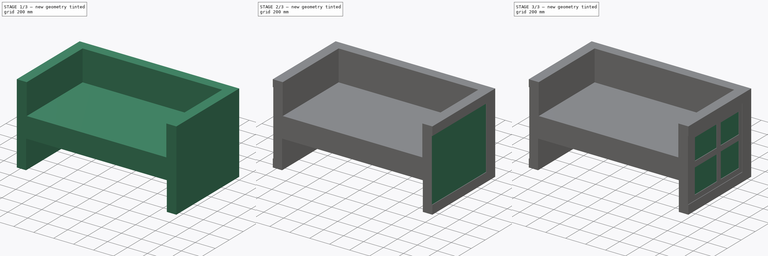
[diagram: build sequence overview — one tinted view per stage of 3, left to right]
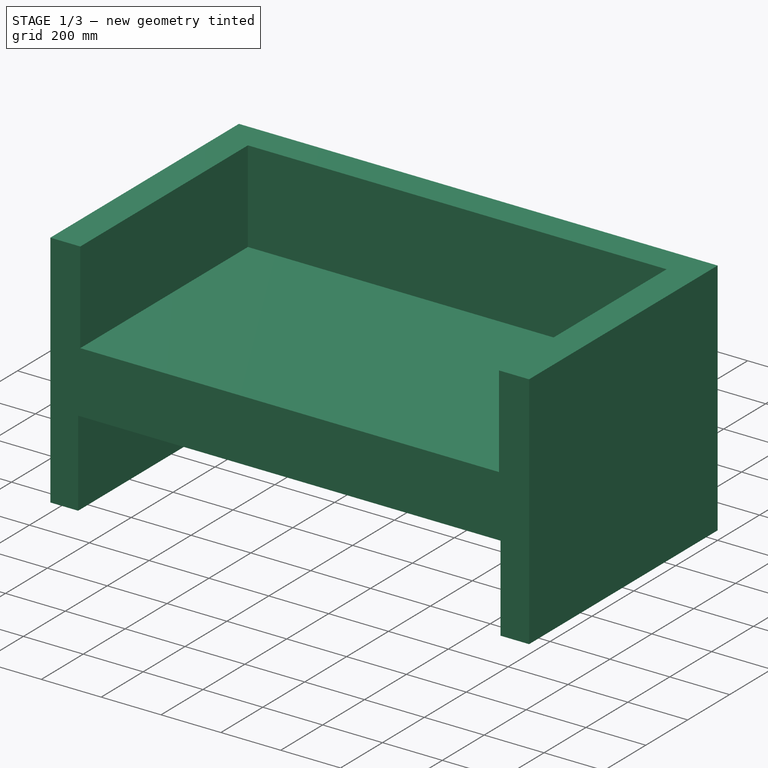
[diagram: stage 1 of 3 — iso view after this stage's code; geometry added in this stage tinted green]
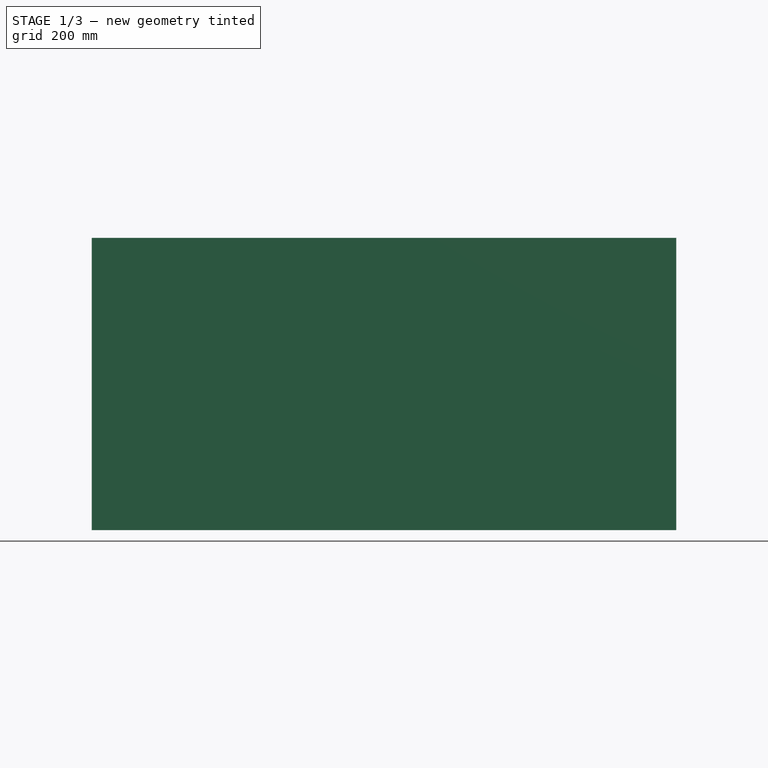
[diagram: stage 1 of 3 — front view after this stage's code; geometry added in this stage tinted green]
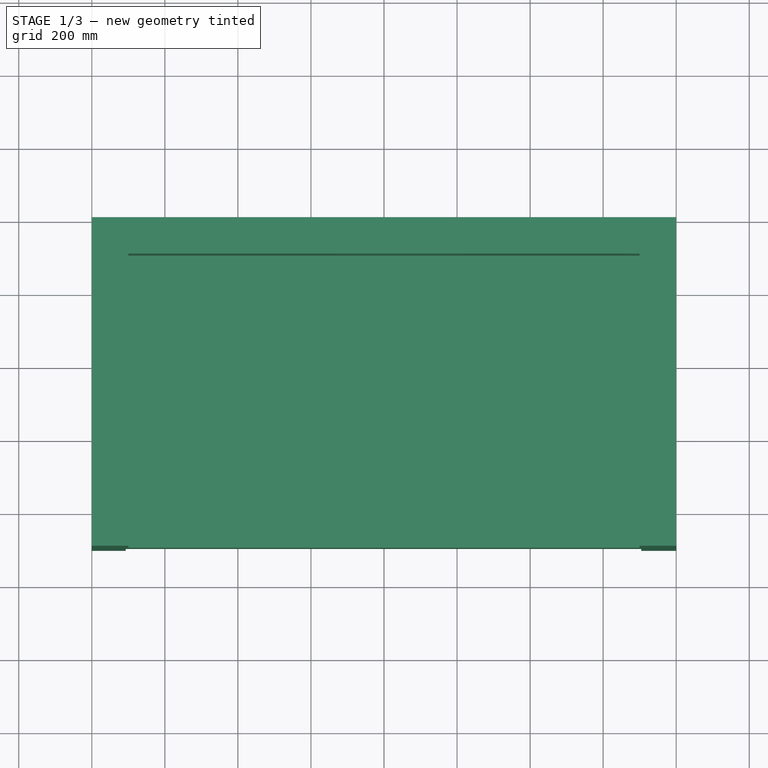
[diagram: stage 1 of 3 — top view after this stage's code; geometry added in this stage tinted green]
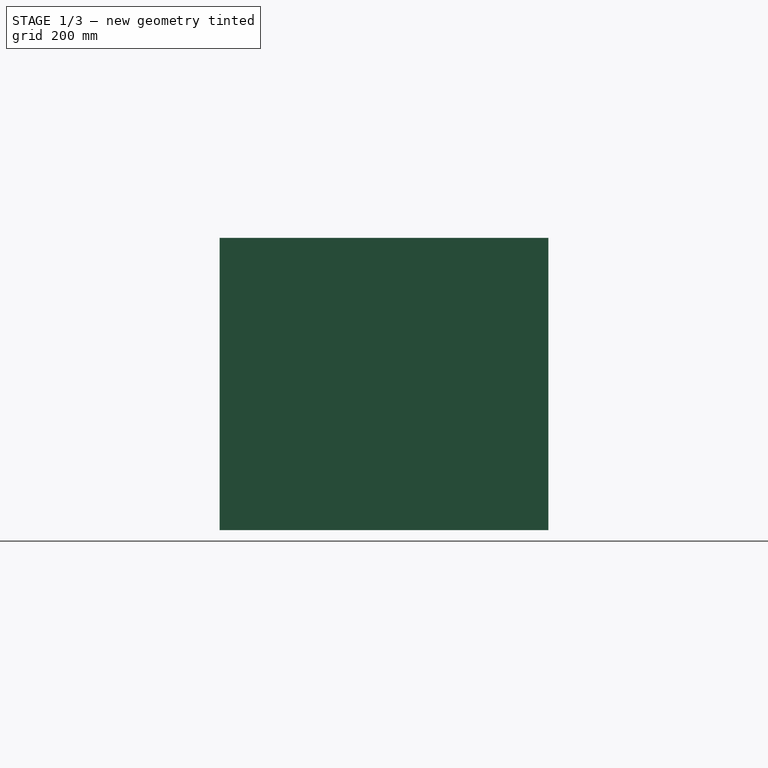
[diagram: stage 1 of 3 — right view after this stage's code; geometry added in this stage tinted green]
FCSTD DOCUMENT  (FreeCAD 1.0R39319 (Git))
Label: kitchen-island
License: All rights reserved
LicenseURL: https://en.wikipedia.org/wiki/All_rights_reserved
objects: Sketcher::SketchObject×6, PartDesign::Pocket×5, PartDesign::Pad×1, PartDesign::Body×1
note: 31 computed .brp shape members not serialized (recipe doc carries the construction recipe); baked Part::Feature solids carry a one-line shape summary decoded from their .brp

FEATURE [Sketcher::SketchObject] Sketch
  ArcFitTolerance = 1e-06
  AttachmentSupport = -> [XZ_Plane]
  FullyConstrained = true
  MakeInternals = false
  MapMode = 5
  Placement = pos=(0,0,0) rot=(1,0,0;1.5708rad)
  sketch-geometry (4):
    g0: LineSegment StartX=0 StartY=0 StartZ=0 EndX=1600 EndY=0 EndZ=0
    g1: LineSegment StartX=1600 StartY=0 StartZ=0 EndX=1600 EndY=800 EndZ=0
    g2: LineSegment StartX=1600 StartY=800 StartZ=0 EndX=0 EndY=800 EndZ=0
    g3: LineSegment StartX=0 StartY=800 StartZ=0 EndX=0 EndY=0 EndZ=0
  constraints (11):
    c: Coincident(g0,g1)
    c: Coincident(g1,g2)
    c: Coincident(g2,g3)
    c: Coincident(g3,g0)
    c: Horizontal(g0)
    c: Horizontal(g2)
    c: Vertical(g1)
    c: Vertical(g3)
    c: Distance(g1,g3) = 1600
    c: Distance(g0,g2) = 800
    c: Coincident(g0,g-1)
FEATURE [PartDesign::Pad] Pad
  Direction = (0,-1,2e-16)
  Length = 900
  Length2 = 10
  Placement = pos=(0,0,0) rot=(1,0,0;1.5708rad)
  Profile = -> Sketch
  ReferenceAxis = -> Sketch [N_Axis]
  Refine = true
  Suppressed = false
  Type = 0
FEATURE [Sketcher::SketchObject] Sketch001
  ArcFitTolerance = 1e-06
  AttachmentSupport = -> [Pad]
  FullyConstrained = false
  MakeInternals = false
  MapMode = 5
  Placement = pos=(0,-900,0) rot=(1,0,0;1.5708rad)
  sketch-geometry (8):
    g0: LineSegment StartX=100 StartY=850.789 StartZ=0 EndX=100 EndY=492.989 EndZ=0
    g1: LineSegment StartX=100 StartY=492.989 StartZ=0 EndX=1499.49 EndY=492.989 EndZ=0
    g2: LineSegment StartX=1499.49 StartY=492.989 StartZ=0 EndX=1499.49 EndY=850.789 EndZ=0
    g3: LineSegment StartX=1499.49 StartY=850.789 StartZ=0 EndX=100 EndY=850.789 EndZ=0
    g4: LineSegment StartX=92.9036 StartY=287.094 StartZ=0 EndX=92.9036 EndY=-99.7955 EndZ=0
    g5: LineSegment StartX=92.9036 StartY=-99.7955 StartZ=0 EndX=1504.29 EndY=-99.7955 EndZ=0
    g6: LineSegment StartX=1504.29 StartY=-99.7955 StartZ=0 EndX=1504.29 EndY=287.094 EndZ=0
    g7: LineSegment StartX=1504.29 StartY=287.094 StartZ=0 EndX=92.9036 EndY=287.094 EndZ=0
  constraints (17):
    c: Coincident(g0,g1)
    c: Coincident(g1,g2)
    c: Coincident(g2,g3)
    c: Coincident(g3,g0)
    c: Vertical(g0)
    c: Vertical(g2)
    c: Horizontal(g1)
    c: Horizontal(g3)
    c: Coincident(g4,g5)
    c: Coincident(g5,g6)
    c: Coincident(g6,g7)
    c: Coincident(g7,g4)
    c: Vertical(g4)
    c: Vertical(g6)
    c: Horizontal(g5)
    c: Horizontal(g7)
    c: Distance(g-2,g0) = 100
FEATURE [PartDesign::Pocket] Pocket
  BaseFeature = -> Pad
  Direction = (0,1,-2e-16)
  Length = 800
  Length2 = 5
  Placement = pos=(0,0,0) rot=(1,0,0;1.5708rad)
  Profile = -> Sketch001
  ReferenceAxis = -> Sketch001 [N_Axis]
  Refine = true
  Suppressed = false
  Type = 0
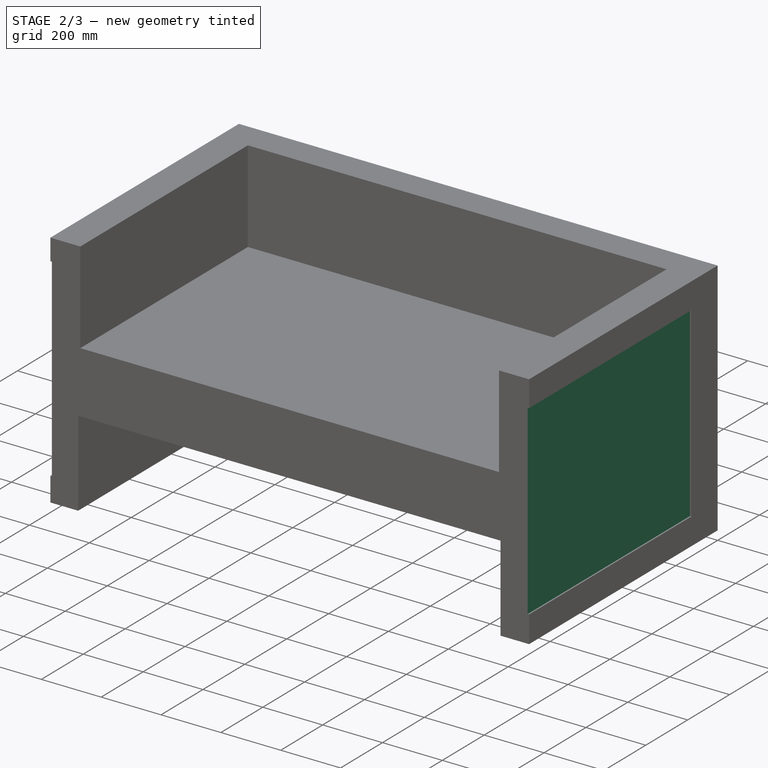
[diagram: stage 2 of 3 — iso view after this stage's code; geometry added in this stage tinted green]
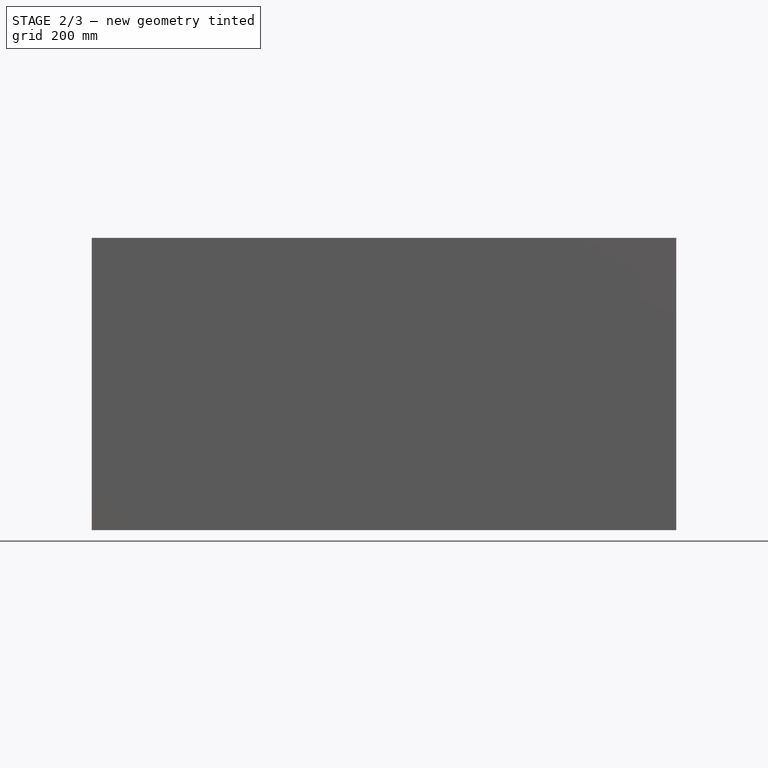
[diagram: stage 2 of 3 — front view after this stage's code; geometry added in this stage tinted green]
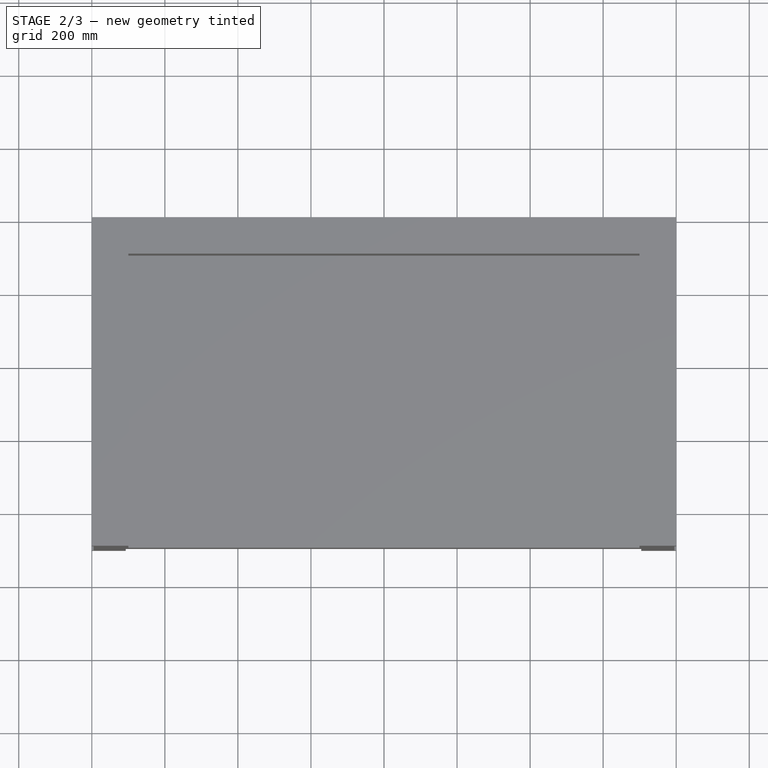
[diagram: stage 2 of 3 — top view after this stage's code; geometry added in this stage tinted green]
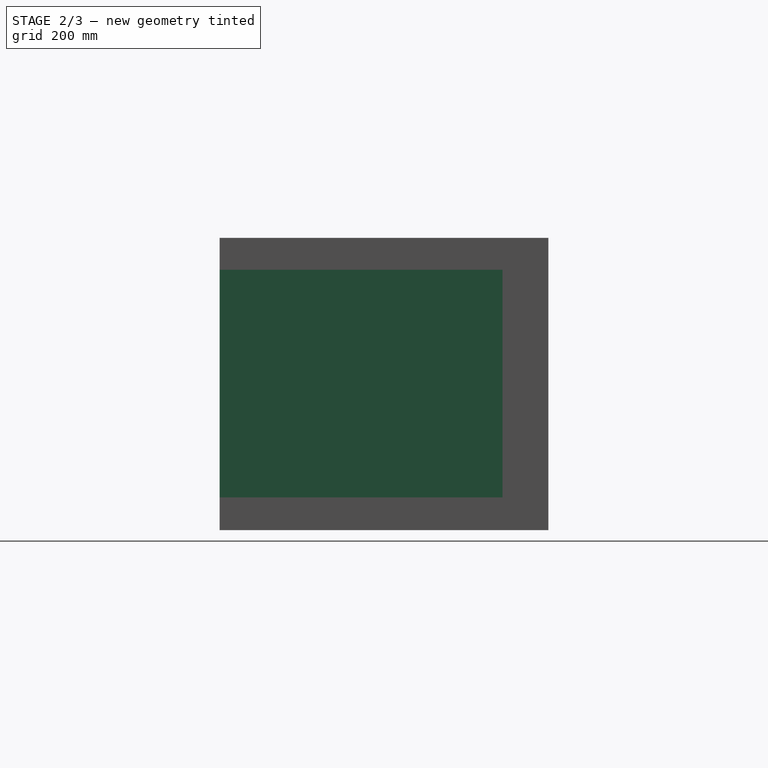
[diagram: stage 2 of 3 — right view after this stage's code; geometry added in this stage tinted green]
FEATURE [Sketcher::SketchObject] Sketch002
  ArcFitTolerance = 1e-06
  AttachmentSupport = -> [Pocket]
  FullyConstrained = false
  MakeInternals = false
  MapMode = 5
  Placement = pos=(0,0,0) rot=(0.707107,0,-0.707107;3.14159rad)
  sketch-geometry (4):
    g0: LineSegment StartX=-728.925 StartY=948.107 StartZ=0 EndX=-728.925 EndY=117.006 EndZ=0
    g1: LineSegment StartX=-728.925 StartY=117.006 StartZ=0 EndX=-80.5352 EndY=117.006 EndZ=0
    g2: LineSegment StartX=-80.5352 StartY=117.006 StartZ=0 EndX=-80.5352 EndY=948.107 EndZ=0
    g3: LineSegment StartX=-80.5352 StartY=948.107 StartZ=0 EndX=-728.925 EndY=948.107 EndZ=0
  constraints (8):
    c: Coincident(g0,g1)
    c: Coincident(g1,g2)
    c: Coincident(g2,g3)
    c: Coincident(g3,g0)
    c: Vertical(g0)
    c: Vertical(g2)
    c: Horizontal(g1)
    c: Horizontal(g3)
FEATURE [PartDesign::Pocket] Pocket001
  BaseFeature = -> Pocket
  Direction = (1,0,2e-16)
  Length = 5
  Length2 = 5
  Placement = pos=(0,0,0) rot=(1,0,0;1.5708rad)
  Profile = -> Sketch002
  ReferenceAxis = -> Sketch002 [N_Axis]
  Refine = true
  Suppressed = false
  Type = 0
FEATURE [Sketcher::SketchObject] Sketch003
  ArcFitTolerance = 1e-06
  AttachmentSupport = -> [Pocket001]
  FullyConstrained = false
  MakeInternals = false
  MapMode = 5
  Placement = pos=(1600,0,0) rot=(0.707107,0,0.707107;3.14159rad)
  sketch-geometry (4):
    g0: LineSegment StartX=89.5911 StartY=1012.07 StartZ=0 EndX=89.5911 EndY=125.529 EndZ=0
    g1: LineSegment StartX=89.5911 StartY=125.529 StartZ=0 EndX=712.818 EndY=125.529 EndZ=0
    g2: LineSegment StartX=712.818 StartY=125.529 StartZ=0 EndX=712.818 EndY=1012.07 EndZ=0
    g3: LineSegment StartX=712.818 StartY=1012.07 StartZ=0 EndX=89.5911 EndY=1012.07 EndZ=0
  constraints (8):
    c: Coincident(g0,g1)
    c: Coincident(g1,g2)
    c: Coincident(g2,g3)
    c: Coincident(g3,g0)
    c: Vertical(g0)
    c: Vertical(g2)
    c: Horizontal(g1)
    c: Horizontal(g3)
FEATURE [PartDesign::Pocket] Pocket002
  BaseFeature = -> Pocket001
  Direction = (-1,0,2e-16)
  Length = 5
  Length2 = 5
  Placement = pos=(0,0,0) rot=(1,0,0;1.5708rad)
  Profile = -> Sketch003
  ReferenceAxis = -> Sketch003 [N_Axis]
  Refine = true
  Suppressed = false
  Type = 0
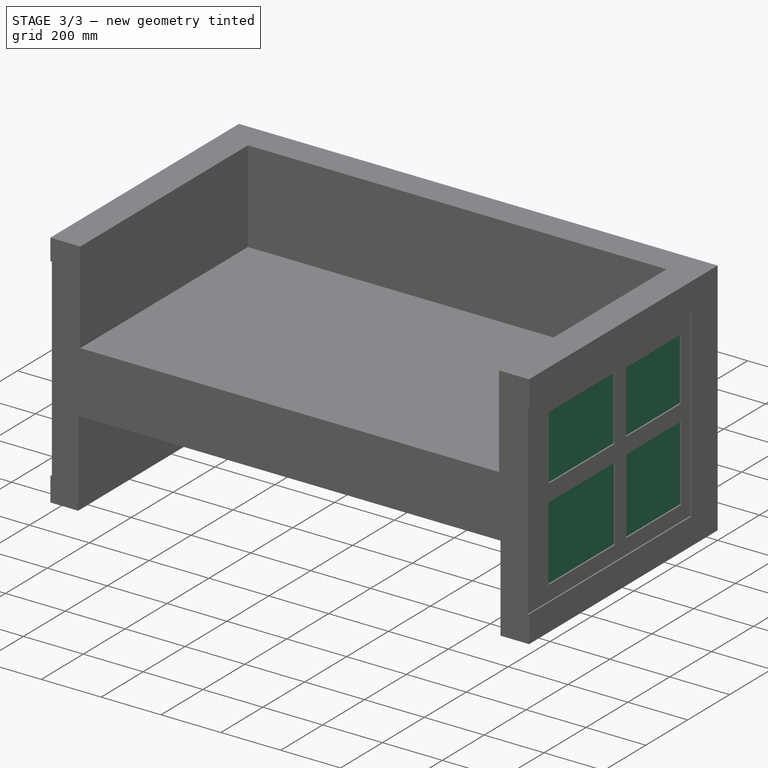
[diagram: stage 3 of 3 — iso view after this stage's code; geometry added in this stage tinted green]
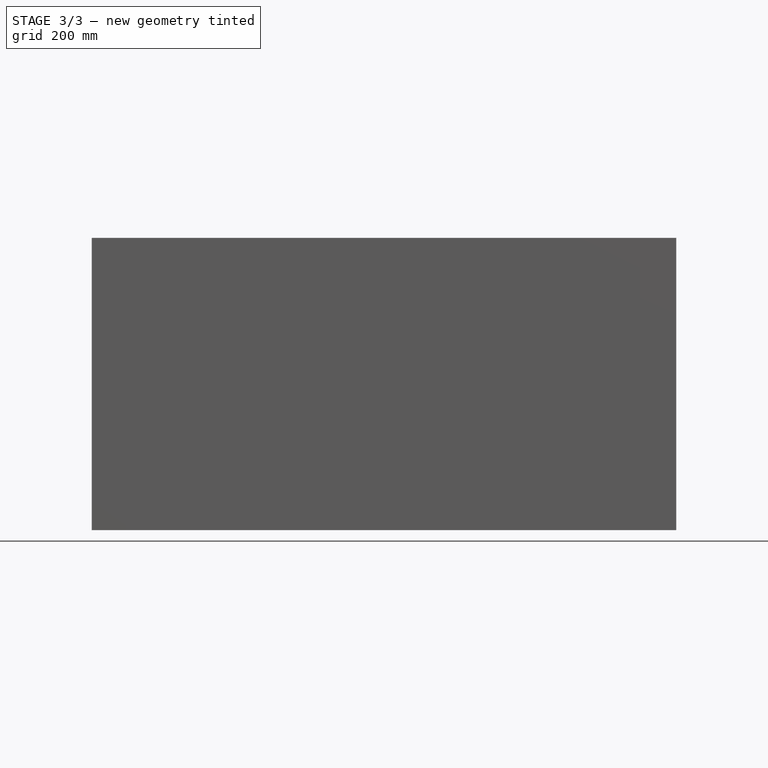
[diagram: stage 3 of 3 — front view after this stage's code; geometry added in this stage tinted green]
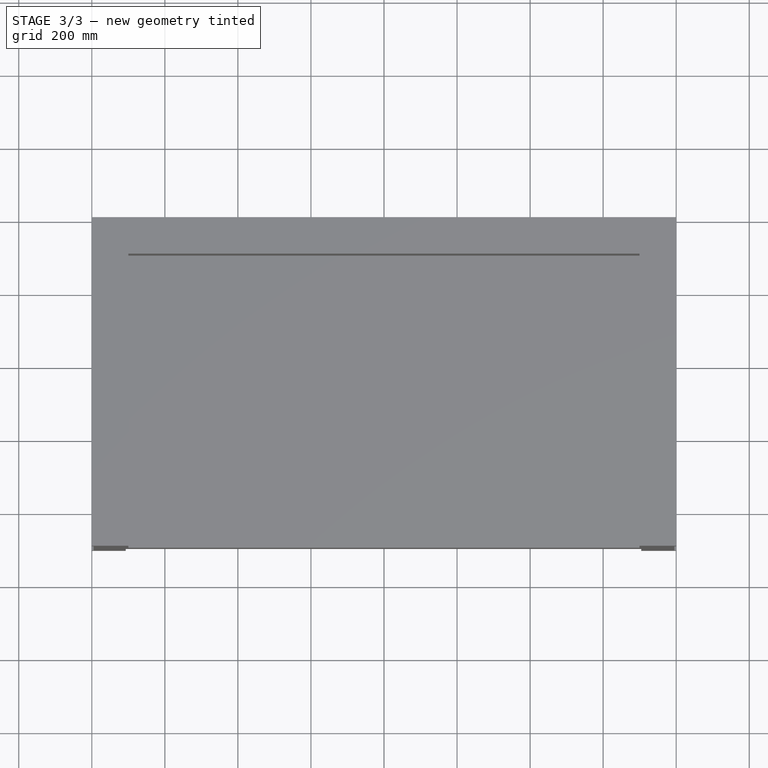
[diagram: stage 3 of 3 — top view after this stage's code; geometry added in this stage tinted green]
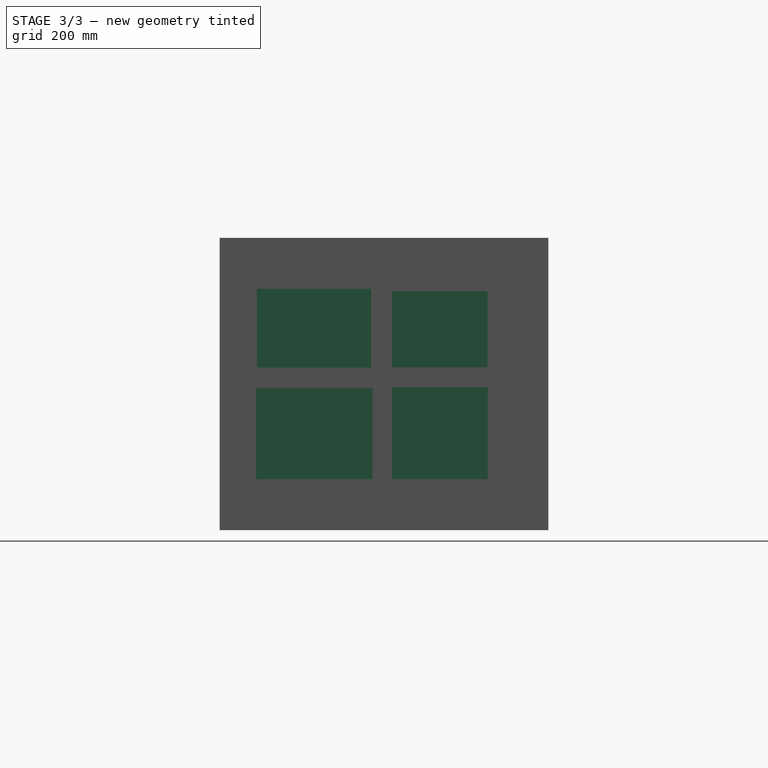
[diagram: stage 3 of 3 — right view after this stage's code; geometry added in this stage tinted green]
FEATURE [Sketcher::SketchObject] Sketch004
  ArcFitTolerance = 1e-06
  AttachmentSupport = -> [Pocket002]
  FullyConstrained = false
  MakeInternals = false
  MapMode = 5
  Placement = pos=(1595,0,-5.819e-13) rot=(0.707107,0,0.707107;3.14159rad)
  sketch-geometry (16):
    g0: LineSegment StartX=139.31 StartY=800.354 StartZ=0 EndX=139.31 EndY=481.549 EndZ=0
    g1: LineSegment StartX=139.31 StartY=481.549 StartZ=0 EndX=388.377 EndY=481.549 EndZ=0
    g2: LineSegment StartX=388.377 StartY=481.549 StartZ=0 EndX=388.377 EndY=800.354 EndZ=0
    g3: LineSegment StartX=388.377 StartY=800.354 StartZ=0 EndX=139.31 EndY=800.354 EndZ=0
    g4: LineSegment StartX=444.994 StartY=798.215 StartZ=0 EndX=444.994 EndY=484.87 EndZ=0
    g5: LineSegment StartX=444.994 StartY=484.87 StartZ=0 EndX=660.852 EndY=484.87 EndZ=0
    g6: LineSegment StartX=660.852 StartY=484.87 StartZ=0 EndX=660.852 EndY=798.215 EndZ=0
    g7: LineSegment StartX=660.852 StartY=798.215 StartZ=0 EndX=444.994 EndY=798.215 EndZ=0
    g8: LineSegment StartX=139.31 StartY=428.414 StartZ=0 EndX=139.31 EndY=166.064 EndZ=0
    g9: LineSegment StartX=139.31 StartY=166.064 StartZ=0 EndX=391.698 EndY=166.064 EndZ=0
    g10: LineSegment StartX=391.698 StartY=166.064 StartZ=0 EndX=391.698 EndY=428.414 EndZ=0
    g11: LineSegment StartX=391.698 StartY=428.414 StartZ=0 EndX=139.31 EndY=428.414 EndZ=0
    g12: LineSegment StartX=445.419 StartY=428.877 StartZ=0 EndX=445.419 EndY=166.777 EndZ=0
    g13: LineSegment StartX=445.419 StartY=166.777 StartZ=0 EndX=654.635 EndY=166.777 EndZ=0
    g14: LineSegment StartX=654.635 StartY=166.777 StartZ=0 EndX=654.635 EndY=428.877 EndZ=0
    g15: LineSegment StartX=654.635 StartY=428.877 StartZ=0 EndX=445.419 EndY=428.877 EndZ=0
  constraints (32):
    c: Coincident(g0,g1)
    c: Coincident(g1,g2)
    c: Coincident(g2,g3)
    c: Coincident(g3,g0)
    c: Vertical(g0)
    c: Vertical(g2)
    c: Horizontal(g1)
    c: Horizontal(g3)
    c: Coincident(g4,g5)
    c: Coincident(g5,g6)
    c: Coincident(g6,g7)
    c: Coincident(g7,g4)
    c: Vertical(g4)
    c: Vertical(g6)
    c: Horizontal(g5)
    c: Horizontal(g7)
    c: Coincident(g8,g9)
    c: Coincident(g9,g10)
    c: Coincident(g10,g11)
    c: Coincident(g11,g8)
    c: Vertical(g8)
    c: Vertical(g10)
    c: Horizontal(g9)
    c: Horizontal(g11)
    c: Coincident(g12,g13)
    c: Coincident(g13,g14)
    c: Coincident(g14,g15)
    c: Coincident(g15,g12)
    c: Vertical(g12)
    c: Vertical(g14)
    c: Horizontal(g13)
    c: Horizontal(g15)
FEATURE [PartDesign::Pocket] Pocket003
  BaseFeature = -> Pocket002
  Direction = (-1,0,2e-16)
  Length = 5
  Length2 = 5
  Placement = pos=(0,0,0) rot=(1,0,0;1.5708rad)
  Profile = -> Sketch004
  ReferenceAxis = -> Sketch004 [N_Axis]
  Refine = true
  Suppressed = false
  Type = 0
FEATURE [Sketcher::SketchObject] Sketch005
  ArcFitTolerance = 1e-06
  AttachmentSupport = -> [Pocket003]
  FullyConstrained = false
  MakeInternals = false
  MapMode = 5
  Placement = pos=(5,0,0) rot=(0.707107,0,-0.707107;3.14159rad)
  sketch-geometry (16):
    g0: LineSegment StartX=-695.034 StartY=857.811 StartZ=0 EndX=-695.034 EndY=552.04 EndZ=0
    g1: LineSegment StartX=-695.034 StartY=552.04 StartZ=0 EndX=-431.689 EndY=552.04 EndZ=0
    g2: LineSegment StartX=-431.689 StartY=552.04 StartZ=0 EndX=-431.689 EndY=857.811 EndZ=0
    g3: LineSegment StartX=-431.689 StartY=857.811 StartZ=0 EndX=-695.034 EndY=857.811 EndZ=0
    g4: LineSegment StartX=-366.381 StartY=853.632 StartZ=0 EndX=-366.381 EndY=547.142 EndZ=0
    g5: LineSegment StartX=-366.381 StartY=547.142 StartZ=0 EndX=-130.882 EndY=547.142 EndZ=0
    g6: LineSegment StartX=-130.882 StartY=547.142 StartZ=0 EndX=-130.882 EndY=853.632 EndZ=0
    g7: LineSegment StartX=-130.882 StartY=853.632 StartZ=0 EndX=-366.381 EndY=853.632 EndZ=0
    g8: LineSegment StartX=-431.689 StartY=496.528 StartZ=0 EndX=-690.855 EndY=496.528 EndZ=0
    g9: LineSegment StartX=-690.855 StartY=496.528 StartZ=0 EndX=-690.855 EndY=155.754 EndZ=0
    g10: LineSegment StartX=-690.855 StartY=155.754 StartZ=0 EndX=-431.689 EndY=155.754 EndZ=0
    g11: LineSegment StartX=-431.689 StartY=155.754 StartZ=0 EndX=-431.689 EndY=496.528 EndZ=0
    g12: LineSegment StartX=-368.014 StartY=486.732 StartZ=0 EndX=-368.014 EndY=159.933 EndZ=0
    g13: LineSegment StartX=-368.014 StartY=159.933 StartZ=0 EndX=-130.882 EndY=159.933 EndZ=0
    g14: LineSegment StartX=-130.882 StartY=159.933 StartZ=0 EndX=-130.882 EndY=486.732 EndZ=0
    g15: LineSegment StartX=-130.882 StartY=486.732 StartZ=0 EndX=-368.014 EndY=486.732 EndZ=0
  constraints (32):
    c: Coincident(g0,g1)
    c: Coincident(g1,g2)
    c: Coincident(g2,g3)
    c: Coincident(g3,g0)
    c: Vertical(g0)
    c: Vertical(g2)
    c: Horizontal(g1)
    c: Horizontal(g3)
    c: Coincident(g4,g5)
    c: Coincident(g5,g6)
    c: Coincident(g6,g7)
    c: Coincident(g7,g4)
    c: Vertical(g4)
    c: Vertical(g6)
    c: Horizontal(g5)
    c: Horizontal(g7)
    c: Coincident(g8,g9)
    c: Coincident(g9,g10)
    c: Coincident(g10,g11)
    c: Coincident(g11,g8)
    c: Horizontal(g8)
    c: Horizontal(g10)
    c: Vertical(g9)
    c: Vertical(g11)
    c: Coincident(g12,g13)
    c: Coincident(g13,g14)
    c: Coincident(g14,g15)
    c: Coincident(g15,g12)
    c: Vertical(g12)
    c: Vertical(g14)
    c: Horizontal(g13)
    c: Horizontal(g15)
FEATURE [PartDesign::Pocket] Pocket004
  BaseFeature = -> Pocket003
  Direction = (1,0,2e-16)
  Length = 5
  Length2 = 5
  Placement = pos=(0,0,0) rot=(1,0,0;1.5708rad)
  Profile = -> Sketch005
  ReferenceAxis = -> Sketch005 [N_Axis]
  Refine = true
  Suppressed = false
  Type = 0
FEATURE [PartDesign::Body] Body
  AllowCompound = false
  Group = -> [Sketch,Pad,Sketch001,Pocket,Sketch002,Pocket001,Sketch003,Pocket002,Sketch004,Pocket003,Sketch005,Pocket004]
  Origin = -> Origin
  Tip = -> Pocket004
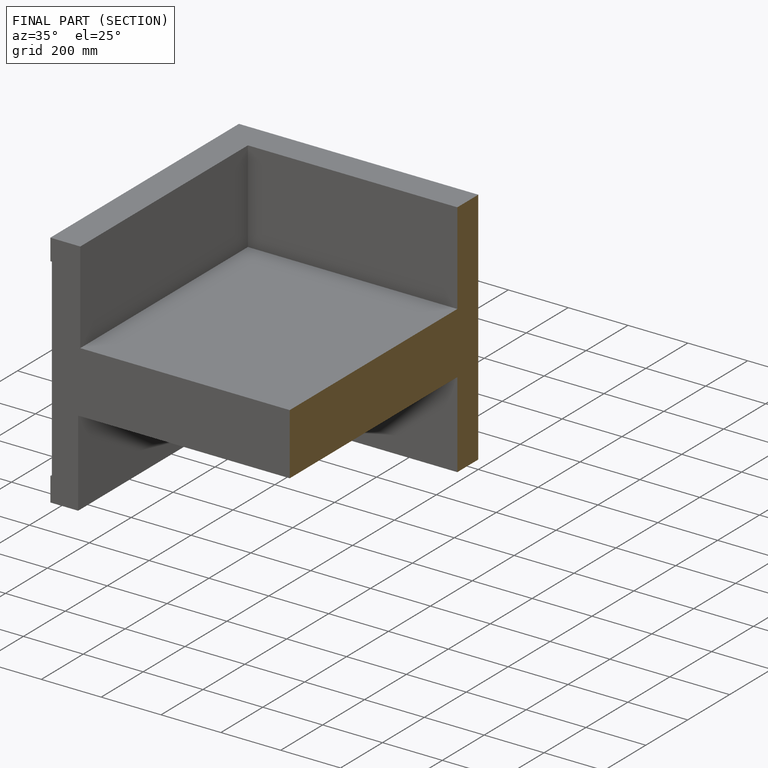
[diagram: finished part — half-section view (interior)]
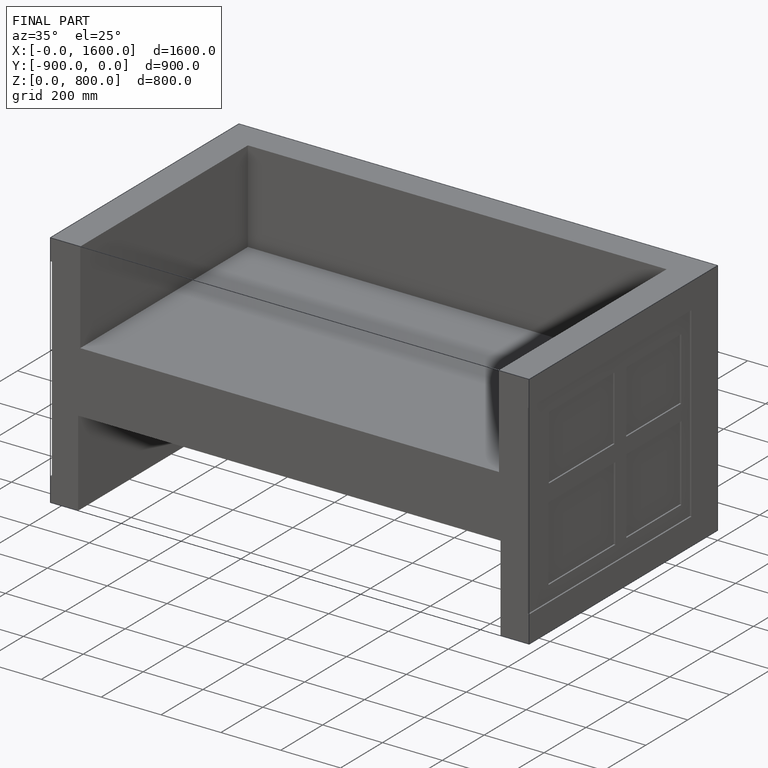
[diagram: finished part — iso view with bounding-box wireframe]
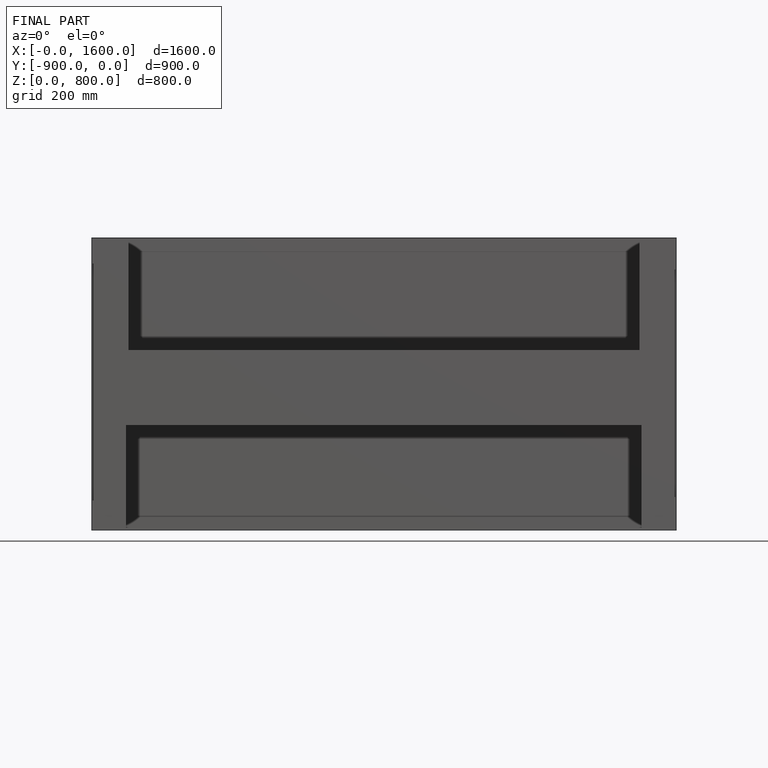
[diagram: finished part — front view with bounding-box wireframe]
